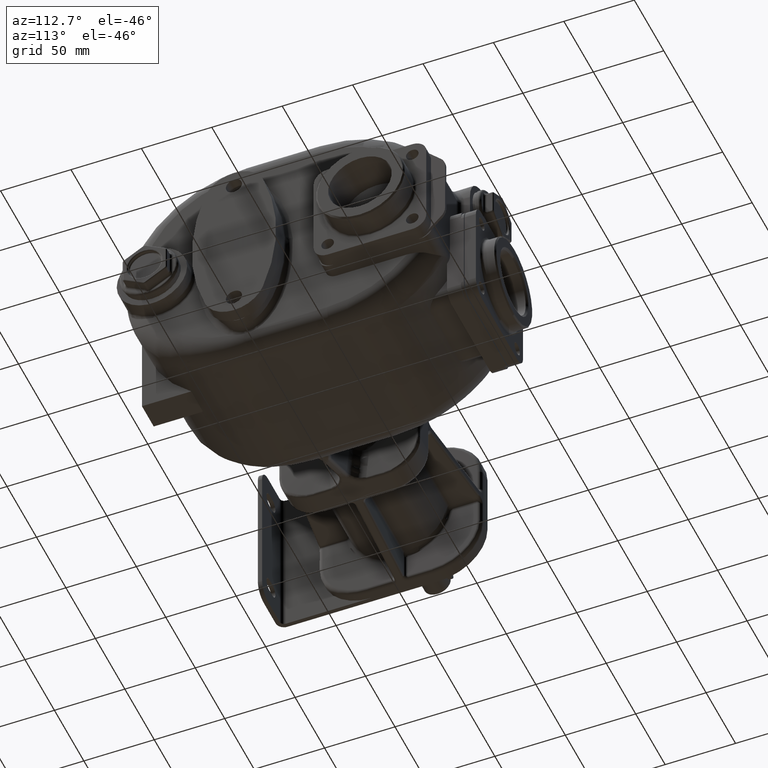
[diagram: clean part render]
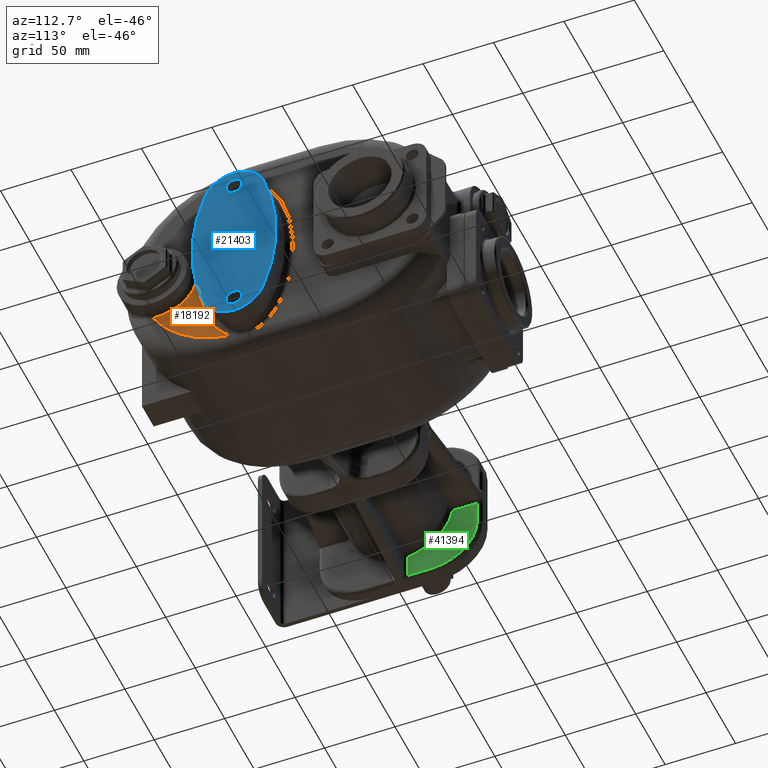
[diagram: same view with three faces highlighted in distinct colors, each labeled with its STEP entity id]
A machine part, auxiliary view with three faces highlighted in distinct colors.
Their STEP definitions:

[orange] entity #18192 — the highlighted planar face has unit normal (-1, 0, 0).
#1507=CARTESIAN_POINT('',(5.E1,2.8E1,-7.E0));
#1508=DIRECTION('',(-1.E0,0.E0,0.E0));
#1509=DIRECTION('',(0.E0,9.999999999986E-1,-1.650824944268E-6));
#1510=AXIS2_PLACEMENT_3D('',#1507,#1508,#1509);
#1512=CARTESIAN_POINT('',(4.999999922859E1,5.599999549188E1,-6.999975947104E0));
#1513=CARTESIAN_POINT('',(4.999999960390E1,5.599999826994E1,-8.081620498023E0));
#1514=CARTESIAN_POINT('',(5.000000018383E1,5.602419256068E1,-1.023918561240E1));
#1515=CARTESIAN_POINT('',(4.999999995074E1,5.613251988203E1,-1.346411309363E1));
#1516=CARTESIAN_POINT('',(5.000000001320E1,5.631179431771E1,-1.665910019951E1));
#1517=CARTESIAN_POINT('',(4.999999999646E1,5.655996844913E1,-1.981219427297E1));
#1518=CARTESIAN_POINT('',(5.000000000095E1,5.687453650584E1,-2.290999394461E1));
#1519=CARTESIAN_POINT('',(4.999999999975E1,5.725209299831E1,-2.594034573766E1));
#1520=CARTESIAN_POINT('',(5.000000000007E1,5.768883487002E1,-2.889212768053E1));
#1521=CARTESIAN_POINT('',(4.999999999998E1,5.818052181457E1,-3.175620584395E1));
#1522=CARTESIAN_POINT('',(5.E1,5.872259650274E1,-3.452473079065E1));
#1523=CARTESIAN_POINT('',(5.E1,5.931031470878E1,-3.719109342857E1));
#1524=CARTESIAN_POINT('',(5.E1,5.993880913695E1,-3.975041303404E1));
#1525=CARTESIAN_POINT('',(5.E1,6.060323044806E1,-4.219909408978E1));
#1526=CARTESIAN_POINT('',(5.E1,6.129881024276E1,-4.453484642393E1));
#1527=CARTESIAN_POINT('',(5.E1,6.202093265602E1,-4.675664697906E1));
#1528=CARTESIAN_POINT('',(5.E1,6.276519715806E1,-4.886459577049E1));
#1529=CARTESIAN_POINT('',(5.E1,6.352751607911E1,-5.085981961942E1));
#1530=CARTESIAN_POINT('',(5.E1,6.430413322530E1,-5.274429981638E1));
#1531=CARTESIAN_POINT('',(5.E1,6.509162938518E1,-5.452087499240E1));
#1532=CARTESIAN_POINT('',(5.E1,6.588697032617E1,-5.619280406513E1));
#1533=CARTESIAN_POINT('',(5.E1,6.668740813046E1,-5.776374253775E1));
#1534=CARTESIAN_POINT('',(5.E1,6.749051396034E1,-5.923771511920E1));
#1535=CARTESIAN_POINT('',(5.E1,6.829424818919E1,-6.061883901359E1));
#1536=CARTESIAN_POINT('',(5.E1,6.909680113063E1,-6.191155072590E1));
#1537=CARTESIAN_POINT('',(5.E1,6.989674120958E1,-6.312012560860E1));
#1538=CARTESIAN_POINT('',(5.E1,7.069283666264E1,-6.424905186998E1));
#1539=CARTESIAN_POINT('',(5.E1,7.148411666262E1,-6.530247147521E1));
#1540=CARTESIAN_POINT('',(5.000000000001E1,7.226982099432E1,-6.628468471837E1));
#1541=CARTESIAN_POINT('',(4.999999999998E1,7.304935206036E1,-6.719953529914E1));
#1542=CARTESIAN_POINT('',(5.000000000007E1,7.382233890452E1,-6.805104174786E1));
#1543=CARTESIAN_POINT('',(4.999999999973E1,7.458837626667E1,-6.884254653283E1));
#1544=CARTESIAN_POINT('',(5.000000000100E1,7.534733444917E1,-6.957766733156E1));
#1545=CARTESIAN_POINT('',(4.999999999625E1,7.609914227608E1,-7.025949124615E1));
#1546=CARTESIAN_POINT('',(5.000000001398E1,7.684409197936E1,-7.089131159739E1));
#1547=CARTESIAN_POINT('',(4.999999994782E1,7.758227548233E1,-7.147588064128E1));
#1548=CARTESIAN_POINT('',(5.000000019472E1,7.831365702047E1,-7.201558033445E1));
#1549=CARTESIAN_POINT('',(4.999999927329E1,7.903863139191E1,-7.251296578163E1));
#1550=CARTESIAN_POINT('',(5.000000271212E1,7.975749074380E1,-7.297025165562E1));
#1551=CARTESIAN_POINT('',(4.999999415620E1,8.023356996743E1,-7.325007403090E1));
#1552=CARTESIAN_POINT('',(4.999999824508E1,8.047059004912E1,-7.338385615119E1));
#1554=CARTESIAN_POINT('',(5.E1,9.E1,0.E0));
#1555=DIRECTION('',(1.E0,0.E0,0.E0));
#1556=DIRECTION('',(0.E0,-8.824911995273E-1,-4.703289091230E-1));
#1557=AXIS2_PLACEMENT_3D('',#1554,#1555,#1556);
#2251=CARTESIAN_POINT('',(4.999999824508E1,8.047059004912E1,-7.338385615119E1));
#14383=VERTEX_POINT('',#2251);
#14398=CARTESIAN_POINT('',(5.E1,5.599999999996E1,-7.000046223098E0));
#14399=CARTESIAN_POINT('',(5.E1,2.469565134499E1,-3.480433922909E1));
#14400=VERTEX_POINT('',#14398);
#14401=VERTEX_POINT('',#14399);
#18180=CARTESIAN_POINT('',(5.E1,9.E1,0.E0));
#18181=DIRECTION('',(-1.E0,0.E0,0.E0));
#18182=DIRECTION('',(0.E0,0.E0,1.E0));
#18183=AXIS2_PLACEMENT_3D('',#18180,#18181,#18182);
#18184=PLANE('',#18183);
#18185=ORIENTED_EDGE('',*,*,#18167,.F.);
#18187=ORIENTED_EDGE('',*,*,#18186,.T.);
#18189=ORIENTED_EDGE('',*,*,#18188,.F.);
#18190=EDGE_LOOP('',(#18185,#18187,#18189));
#18191=FACE_OUTER_BOUND('',#18190,.F.);
#18192=ADVANCED_FACE('',(#18191),#18184,.F.);
#1511=CIRCLE('',#1510,2.8E1);
#1553=B_SPLINE_CURVE_WITH_KNOTS('',3,(#1512,#1513,#1514,#1515,#1516,#1517,#1518,
#1519,#1520,#1521,#1522,#1523,#1524,#1525,#1526,#1527,#1528,#1529,#1530,#1531,
#1532,#1533,#1534,#1535,#1536,#1537,#1538,#1539,#1540,#1541,#1542,#1543,#1544,
#1545,#1546,#1547,#1548,#1549,#1550,#1551,#1552),.UNSPECIFIED.,.F.,.F.,(4,1,1,1,
1,1,1,1,1,1,1,1,1,1,1,1,1,1,1,1,1,1,1,1,1,1,1,1,1,1,1,1,1,1,1,1,1,1,4),(0.E0,
2.631578947368E-2,5.263157894737E-2,7.894736842105E-2,1.052631578947E-1,
1.315789473684E-1,1.578947368421E-1,1.842105263158E-1,2.105263157895E-1,
2.368421052632E-1,2.631578947368E-1,2.894736842105E-1,3.157894736842E-1,
3.421052631579E-1,3.684210526316E-1,3.947368421053E-1,4.210526315789E-1,
4.473684210526E-1,4.736842105263E-1,5.E-1,5.263157894737E-1,5.526315789474E-1,
5.789473684211E-1,6.052631578947E-1,6.315789473684E-1,6.578947368421E-1,
6.842105263158E-1,7.105263157895E-1,7.368421052632E-1,7.631578947368E-1,
7.894736842105E-1,8.157894736842E-1,8.421052631579E-1,8.684210526316E-1,
8.947368421053E-1,9.210526315789E-1,9.473684210526E-1,9.736842105263E-1,1.E0),
.UNSPECIFIED.);
#1558=CIRCLE('',#1557,7.4E1);
#18167=EDGE_CURVE('',#14400,#14401,#1511,.T.);
#18186=EDGE_CURVE('',#14400,#14383,#1553,.T.);
#18188=EDGE_CURVE('',#14401,#14383,#1558,.T.);

[blue] entity #21403 — the highlighted planar face has unit normal (1, 0, 0).
#3527=CARTESIAN_POINT('',(6.9E1,2.E2,-6.99E0));
#3528=DIRECTION('',(1.E0,0.E0,0.E0));
#3529=DIRECTION('',(0.E0,-9.322095515959E-1,3.619189852900E-1));
#3530=AXIS2_PLACEMENT_3D('',#3527,#3528,#3529);
#3532=CARTESIAN_POINT('',(6.9E1,9.E1,3.570528552457E1));
#3533=DIRECTION('',(1.E0,0.E0,0.E0));
#3534=DIRECTION('',(0.E0,9.320427750791E-1,3.623482653786E-1));
#3535=AXIS2_PLACEMENT_3D('',#3532,#3533,#3534);
#3537=CARTESIAN_POINT('',(6.9E1,-2.E1,-6.99E0));
#3538=DIRECTION('',(1.E0,0.E0,0.E0));
#3539=DIRECTION('',(0.E0,9.322496398259E-1,-3.618157114394E-1));
#3540=AXIS2_PLACEMENT_3D('',#3537,#3538,#3539);
#3542=CARTESIAN_POINT('',(6.9E1,9.E1,-4.968528552457E1));
#3543=DIRECTION('',(1.E0,0.E0,0.E0));
#3544=DIRECTION('',(0.E0,-9.322979185720E-1,-3.616912924391E-1));
#3545=AXIS2_PLACEMENT_3D('',#3542,#3543,#3544);
#3547=CARTESIAN_POINT('',(6.9E1,9.E1,-5.949E1));
#3548=DIRECTION('',(1.E0,0.E0,0.E0));
#3549=DIRECTION('',(0.E0,0.E0,-1.E0));
#3550=AXIS2_PLACEMENT_3D('',#3547,#3548,#3549);
#3552=CARTESIAN_POINT('',(6.9E1,9.E1,-5.949E1));
#3553=DIRECTION('',(1.E0,0.E0,0.E0));
#3554=DIRECTION('',(0.E0,0.E0,1.E0));
#3555=AXIS2_PLACEMENT_3D('',#3552,#3553,#3554);
#3557=CARTESIAN_POINT('',(6.9E1,9.E1,4.551E1));
#3558=DIRECTION('',(-1.E0,0.E0,0.E0));
#3559=DIRECTION('',(0.E0,0.E0,1.E0));
#3560=AXIS2_PLACEMENT_3D('',#3557,#3558,#3559);
#3562=CARTESIAN_POINT('',(6.9E1,9.E1,4.551E1));
#3563=DIRECTION('',(-1.E0,0.E0,0.E0));
#3564=DIRECTION('',(0.E0,0.E0,-1.E0));
#3565=AXIS2_PLACEMENT_3D('',#3562,#3563,#3564);
#15100=CARTESIAN_POINT('',(6.9E1,6.949066277657E1,4.367865794060E1));
#15101=CARTESIAN_POINT('',(6.9E1,6.948505042437E1,-5.764419960152E1));
#15102=VERTEX_POINT('',#15100);
#15103=VERTEX_POINT('',#15101);
#15104=CARTESIAN_POINT('',(6.9E1,1.105149495042E2,-5.764419914294E1));
#15105=VERTEX_POINT('',#15104);
#15106=CARTESIAN_POINT('',(6.9E1,1.105093372234E2,4.367865794060E1));
#15107=VERTEX_POINT('',#15106);
#15108=CARTESIAN_POINT('',(6.9E1,9.E1,-6.524E1));
#15109=CARTESIAN_POINT('',(6.9E1,9.E1,-5.374E1));
#15110=VERTEX_POINT('',#15108);
#15111=VERTEX_POINT('',#15109);
#15112=CARTESIAN_POINT('',(6.9E1,9.E1,5.126E1));
#15113=CARTESIAN_POINT('',(6.9E1,9.E1,3.976E1));
#15114=VERTEX_POINT('',#15112);
#15115=VERTEX_POINT('',#15113);
#21380=CARTESIAN_POINT('',(6.9E1,9.E1,-6.99E0));
#21381=DIRECTION('',(1.E0,0.E0,0.E0));
#21382=DIRECTION('',(0.E0,0.E0,1.E0));
#21383=AXIS2_PLACEMENT_3D('',#21380,#21381,#21382);
#21384=PLANE('',#21383);
#21385=ORIENTED_EDGE('',*,*,#21312,.F.);
#21386=ORIENTED_EDGE('',*,*,#21331,.F.);
#21387=ORIENTED_EDGE('',*,*,#21350,.F.);
#21388=ORIENTED_EDGE('',*,*,#21368,.F.);
#21389=EDGE_LOOP('',(#21385,#21386,#21387,#21388));
#21390=FACE_OUTER_BOUND('',#21389,.F.);
#21392=ORIENTED_EDGE('',*,*,#21391,.T.);
#21394=ORIENTED_EDGE('',*,*,#21393,.T.);
#21395=EDGE_LOOP('',(#21392,#21394));
#21396=FACE_BOUND('',#21395,.F.);
#21398=ORIENTED_EDGE('',*,*,#21397,.F.);
#21400=ORIENTED_EDGE('',*,*,#21399,.F.);
#21401=EDGE_LOOP('',(#21398,#21400));
#21402=FACE_BOUND('',#21401,.F.);
#21403=ADVANCED_FACE('',(#21390,#21396,#21402),#21384,.T.);
#3531=CIRCLE('',#3530,1.4E2);
#3536=CIRCLE('',#3535,2.200471447543E1);
#3541=CIRCLE('',#3540,1.4E2);
#3546=CIRCLE('',#3545,2.200471447543E1);
#3551=CIRCLE('',#3550,5.75E0);
#3556=CIRCLE('',#3555,5.75E0);
#3561=CIRCLE('',#3560,5.75E0);
#3566=CIRCLE('',#3565,5.75E0);
#21312=EDGE_CURVE('',#15102,#15103,#3531,.T.);
#21331=EDGE_CURVE('',#15107,#15102,#3536,.T.);
#21350=EDGE_CURVE('',#15105,#15107,#3541,.T.);
#21368=EDGE_CURVE('',#15103,#15105,#3546,.T.);
#21391=EDGE_CURVE('',#15110,#15111,#3551,.T.);
#21393=EDGE_CURVE('',#15111,#15110,#3556,.T.);
#21397=EDGE_CURVE('',#15114,#15115,#3561,.T.);
#21399=EDGE_CURVE('',#15115,#15114,#3566,.T.);

[green] entity #41394 — the highlighted planar face has unit normal (-1, 0, 0).
#11054=DIRECTION('',(3.281914644221E-10,0.E0,1.E0));
#11055=VECTOR('',#11054,1.740013298012E1);
#11056=CARTESIAN_POINT('',(-2.128E2,9.55E1,-5.5E1));
#11057=LINE('',#11056,#11055);
#11058=DIRECTION('',(0.E0,1.E0,0.E0));
#11059=VECTOR('',#11058,1.756004807695E1);
#11060=CARTESIAN_POINT('',(-2.128E2,1.274399519230E2,-6.5E0));
#11061=LINE('',#11060,#11059);
#11062=DIRECTION('',(0.E0,0.E0,1.E0));
#11063=VECTOR('',#11062,1.65E1);
#11064=CARTESIAN_POINT('',(-2.128E2,1.45E2,-2.3E1));
#11065=LINE('',#11064,#11063);
#11066=CARTESIAN_POINT('',(-2.128E2,1.13E2,-2.3E1));
#11067=DIRECTION('',(1.E0,0.E0,0.E0));
#11068=DIRECTION('',(0.E0,0.E0,-1.E0));
#11069=AXIS2_PLACEMENT_3D('',#11066,#11067,#11068);
#11071=DIRECTION('',(0.E0,1.E0,0.E0));
#11072=VECTOR('',#11071,1.75E1);
#11073=CARTESIAN_POINT('',(-2.128E2,9.55E1,-5.5E1));
#11074=LINE('',#11073,#11072);
#11116=CARTESIAN_POINT('',(-2.127999999943E2,9.55E1,-3.759986701988E1));
#11135=CARTESIAN_POINT('',(-2.128E2,9.E1,0.E0));
#11136=DIRECTION('',(-1.E0,0.E0,0.E0));
#11137=DIRECTION('',(0.E0,9.852618927117E-1,-1.710526315789E-1));
#11138=AXIS2_PLACEMENT_3D('',#11135,#11136,#11137);
#15820=CARTESIAN_POINT('',(-2.128E2,1.13E2,-5.5E1));
#15821=CARTESIAN_POINT('',(-2.128E2,1.45E2,-2.3E1));
#15822=VERTEX_POINT('',#15820);
#15823=VERTEX_POINT('',#15821);
#15882=CARTESIAN_POINT('',(-2.128E2,1.274399519230E2,-6.5E0));
#15883=CARTESIAN_POINT('',(-2.128E2,1.45E2,-6.5E0));
#15884=VERTEX_POINT('',#15882);
#15885=VERTEX_POINT('',#15883);
#16003=VERTEX_POINT('',#11116);
#16004=CARTESIAN_POINT('',(-2.128E2,9.55E1,-5.5E1));
#16005=VERTEX_POINT('',#16004);
#41378=CARTESIAN_POINT('',(-2.128E2,9.E1,0.E0));
#41379=DIRECTION('',(-1.E0,0.E0,0.E0));
#41380=DIRECTION('',(0.E0,0.E0,-1.E0));
#41381=AXIS2_PLACEMENT_3D('',#41378,#41379,#41380);
#41382=PLANE('',#41381);
#41384=ORIENTED_EDGE('',*,*,#41383,.T.);
#41386=ORIENTED_EDGE('',*,*,#41385,.F.);
#41387=ORIENTED_EDGE('',*,*,#41369,.T.);
#41388=ORIENTED_EDGE('',*,*,#38863,.F.);
#41390=ORIENTED_EDGE('',*,*,#41389,.F.);
#41391=ORIENTED_EDGE('',*,*,#40872,.F.);
#41392=EDGE_LOOP('',(#41384,#41386,#41387,#41388,#41390,#41391));
#41393=FACE_OUTER_BOUND('',#41392,.F.);
#41394=ADVANCED_FACE('',(#41393),#41382,.F.);
#11070=CIRCLE('',#11069,3.2E1);
#11139=CIRCLE('',#11138,3.8E1);
#38863=EDGE_CURVE('',#15823,#15885,#11065,.T.);
#40872=EDGE_CURVE('',#16005,#15822,#11074,.T.);
#41369=EDGE_CURVE('',#15884,#15885,#11061,.T.);
#41383=EDGE_CURVE('',#16005,#16003,#11057,.T.);
#41385=EDGE_CURVE('',#15884,#16003,#11139,.T.);
#41389=EDGE_CURVE('',#15822,#15823,#11070,.T.);